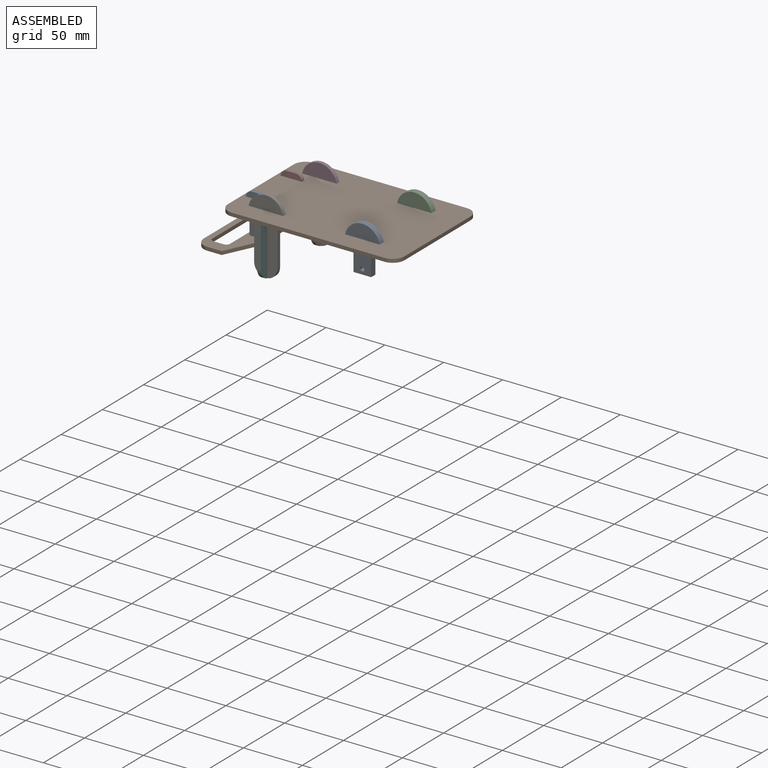
[diagram: assembled view]
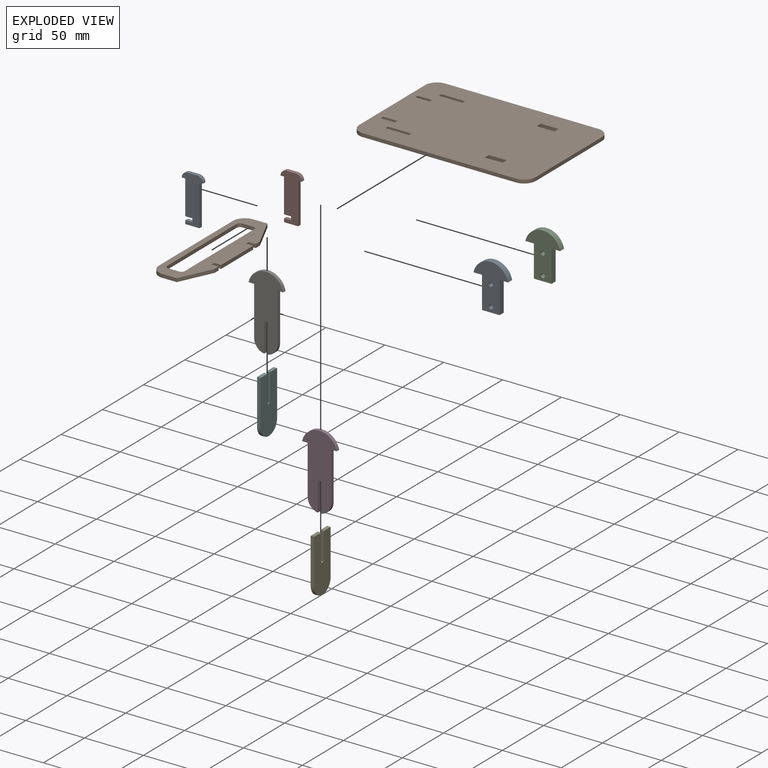
[diagram: exploded view]
GUIDED TOUR — MATED ASSEMBLY (Onshape document abbd8130f649f69f7b4c70c9, AutoMate assembly abbd8130f649f69f7b4c70c9_f316519da20f3b1aefb5f9d1_b10ad8e647afa2b3a58026e4_default)

This assembly has 10 components, labeled P0..P9 below (a component is one placed occurrence of a part; the same part can appear more than once), held together by 7 mates. A mate is a constraint between two components; its type names the relative motion it leaves free:
  FASTENED — locks the two components together rigidly (no relative motion).
Axis/direction vectors are unit vectors and 'through' points are millimeter coordinates, both in the assembly's world frame.

MATES
  1. FASTENED "고정 4": P5 <-> P6, direction (0.000, 0.000, 1.000) through (-47.23, -32.46, -24.69) mm
  2. FASTENED "고정 5": P4 <-> P3, direction (0.000, 0.000, 1.000) through (-47.23, 32.54, -24.69) mm
  3. FASTENED "고정 1": P9 <-> P8, direction (0.000, 0.000, 1.000) through (-69.23, -20.96, 1.76) mm
  4. FASTENED "고정 7": P0 <-> P9, direction (0.000, 0.000, -1.000) through (42.27, -31.46, 1.76) mm
  5. FASTENED "고정 2": P1 <-> P8, direction (1.000, 0.000, 0.000) through (-63.23, -20.96, -28.74) mm
  6. FASTENED "고정 3": P6 <-> P9, direction (0.000, 0.000, -1.000) through (-37.23, -32.46, 1.76) mm
  7. FASTENED "고정 6": P9 <-> P2, direction (0.000, 0.000, 1.000) through (42.27, 31.54, 1.76) mm

ASSEMBLY ORDER
  1. P7 — the base component [order verified]
  2. P1 [order verified]
  3. P8 [order verified]
  4. P9 [order verified]
  5. P0 [order verified]
  6. P6 [order verified]
  7. P5 [order verified]
  8. P3 [order verified]
  9. P4 [order verified]
  10. P2 [order verified]
Order-tag legend:
  [order verified] — this step's position reverses a verified removal order: the component was checked to insert without passing through the ones already placed.

Of the 10 components, 1 carries the full construction recipe — the FeatureScript program that regenerates the part's solid from scratch; the rest are supplied as boundary geometry only.
Each toured component is shown spotlighted twice — in the assembled view, then in the exploded view, where a leader line traces a displaced component back to its assembled socket (saturated green if recipe-attached, orange if geometry-only; every other component desaturated gray) — followed by its recipe or geometry summary and the mates that hold it.
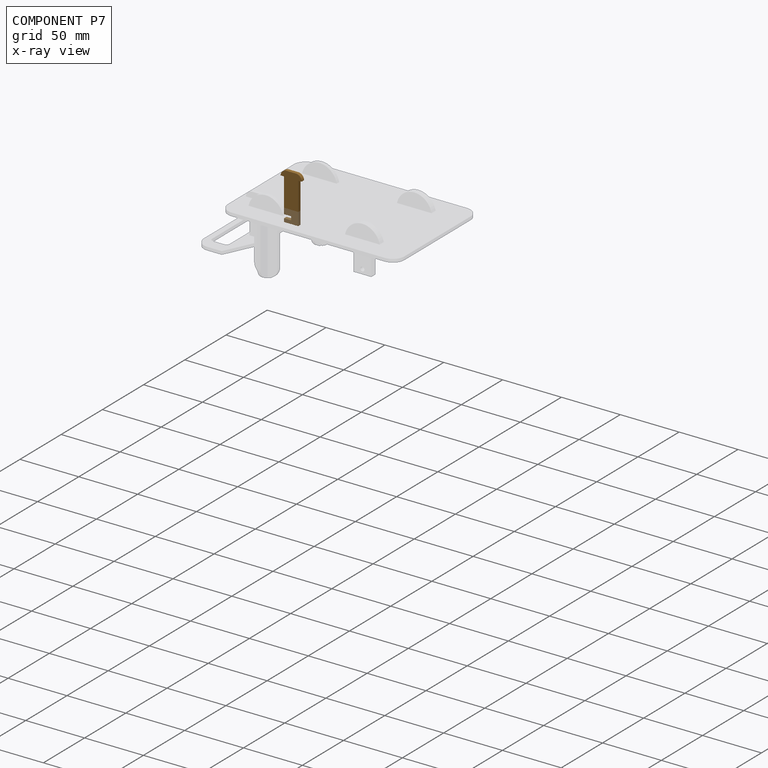
[diagram: component P7 — x-ray view]
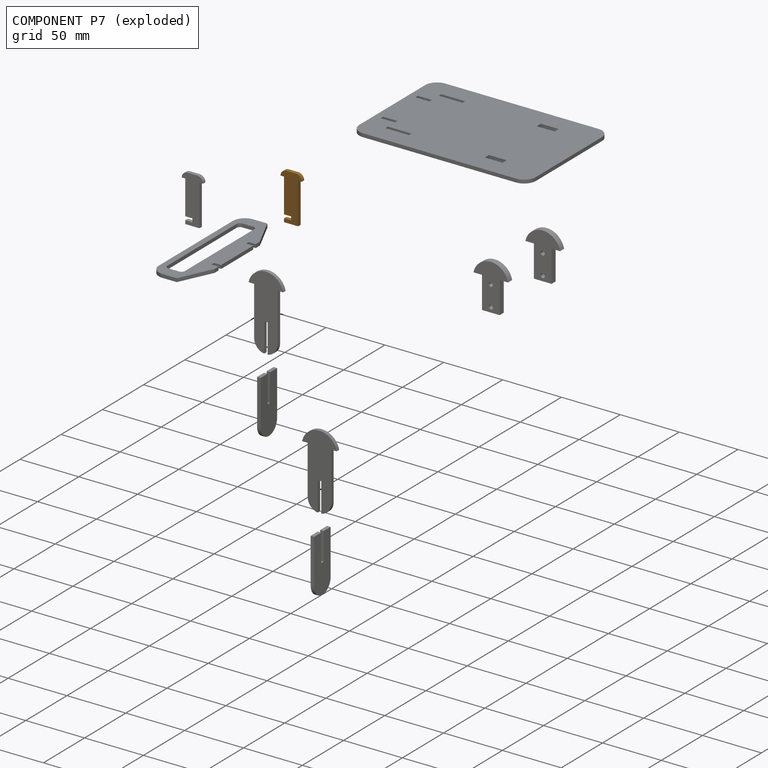
[diagram: component P7 — exploded]
COMPONENT P7 — geometry summary (no construction recipe available for this part):
  bounding box: 40.0 x 18.0 x 3.0 mm
  B-rep topology: 1 solid, 14 faces, 72 edges
  volume: 1444 mm^3 (67% of its bounding box)
  symmetry: mirror-symmetric across its z mid-plane
Held by: no mates (free).
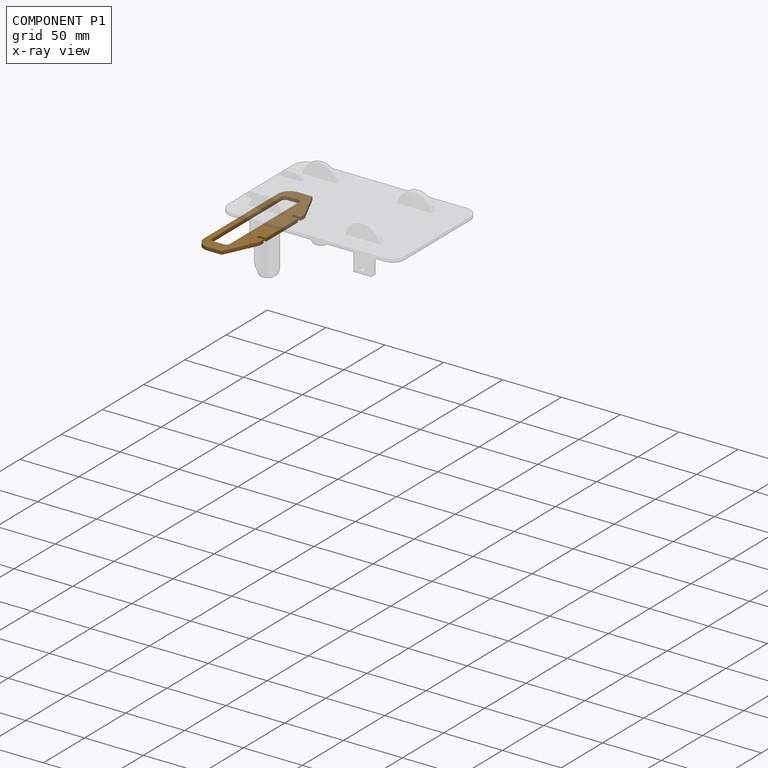
[diagram: component P1 — x-ray view]
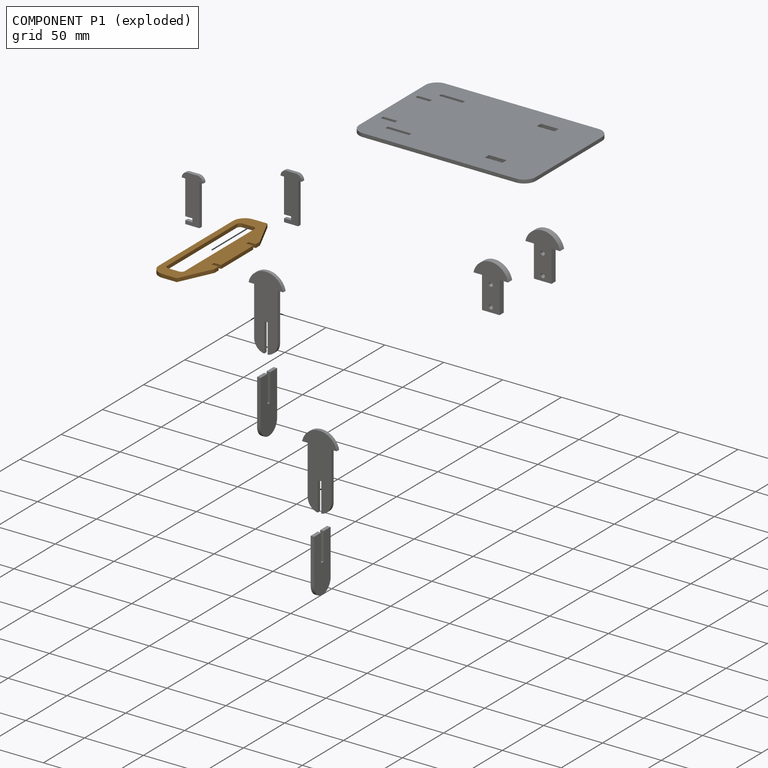
[diagram: component P1 — exploded]
COMPONENT P1 — geometry summary (no construction recipe available for this part):
  bounding box: 110.0 x 35.0 x 3.0 mm
  B-rep topology: 1 solid, 26 faces, 144 edges
  volume: 6228 mm^3 (54% of its bounding box)
  symmetry: 2-fold rotationally symmetric about the x axis; mirror-symmetric across its y mid-plane, z mid-plane
Held by: FASTENED mate "고정 2" to P8.
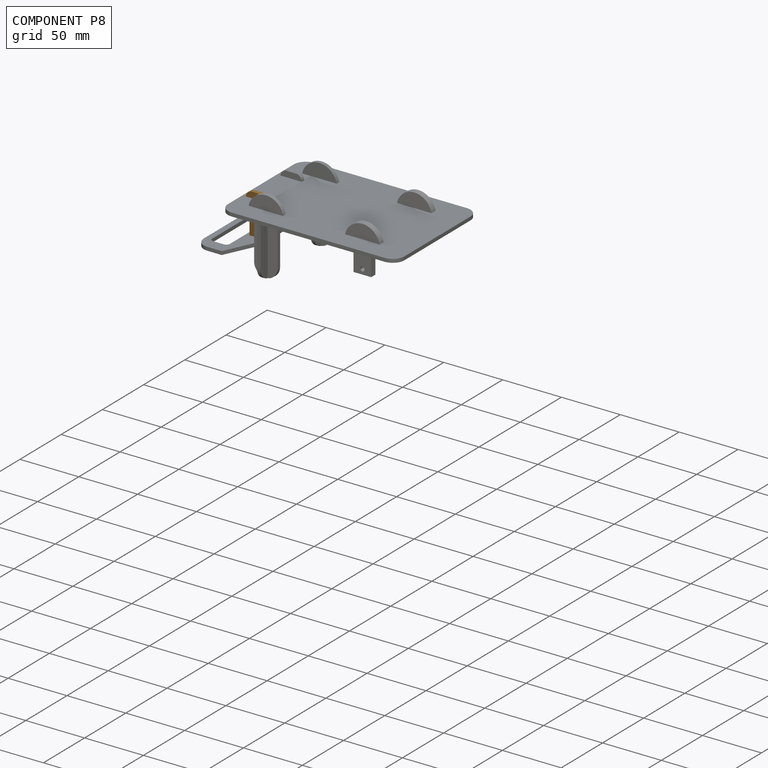
[diagram: component P8 — assembled]
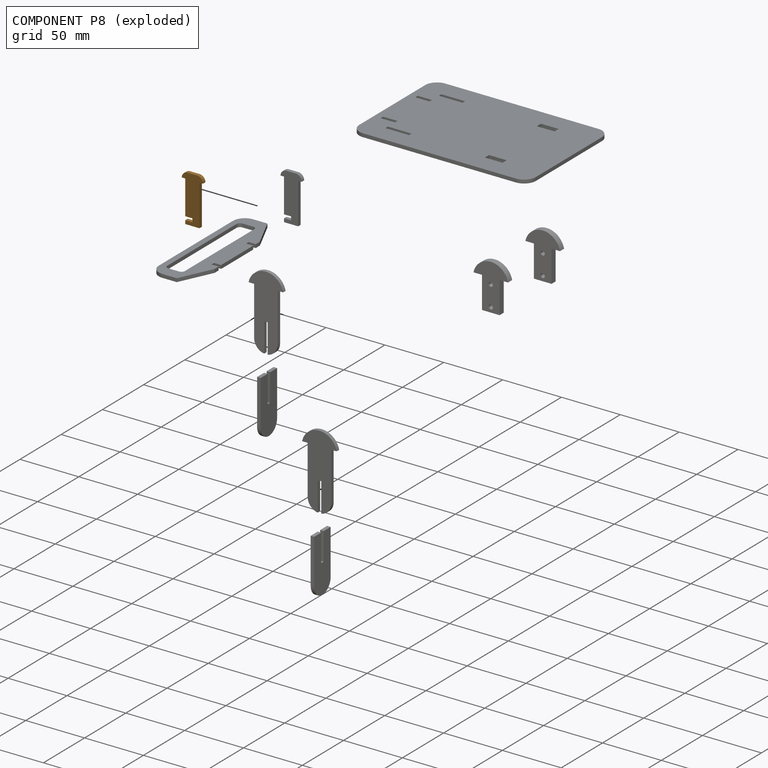
[diagram: component P8 — exploded]
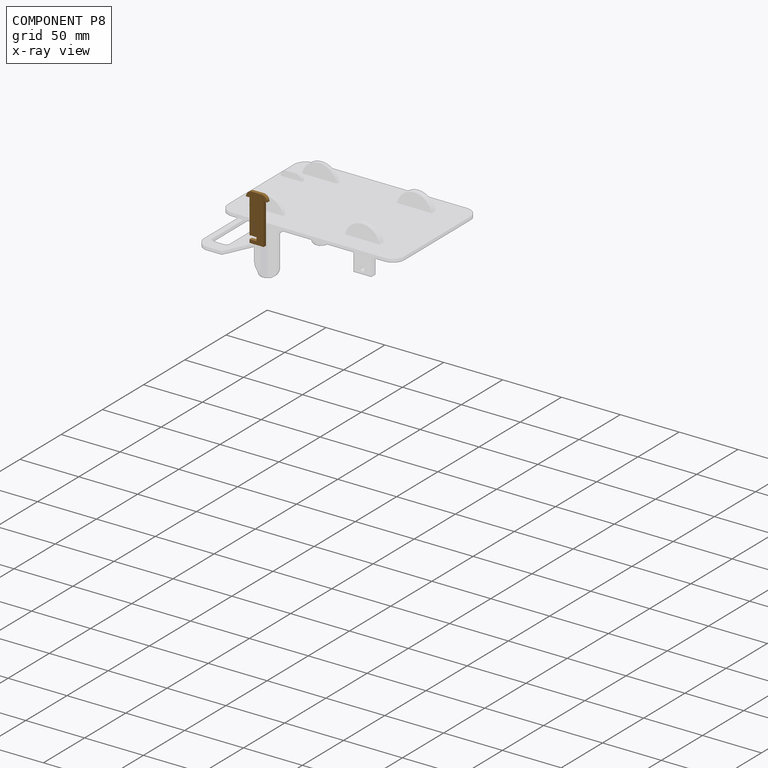
[diagram: component P8 — x-ray view]
COMPONENT P8 — geometry summary (no construction recipe available for this part):
  bounding box: 40.0 x 18.0 x 3.0 mm
  B-rep topology: 1 solid, 14 faces, 72 edges
  volume: 1444 mm^3 (67% of its bounding box)
  symmetry: mirror-symmetric across its z mid-plane
Held by: FASTENED mate "고정 1" to P9; FASTENED mate "고정 2" to P1.
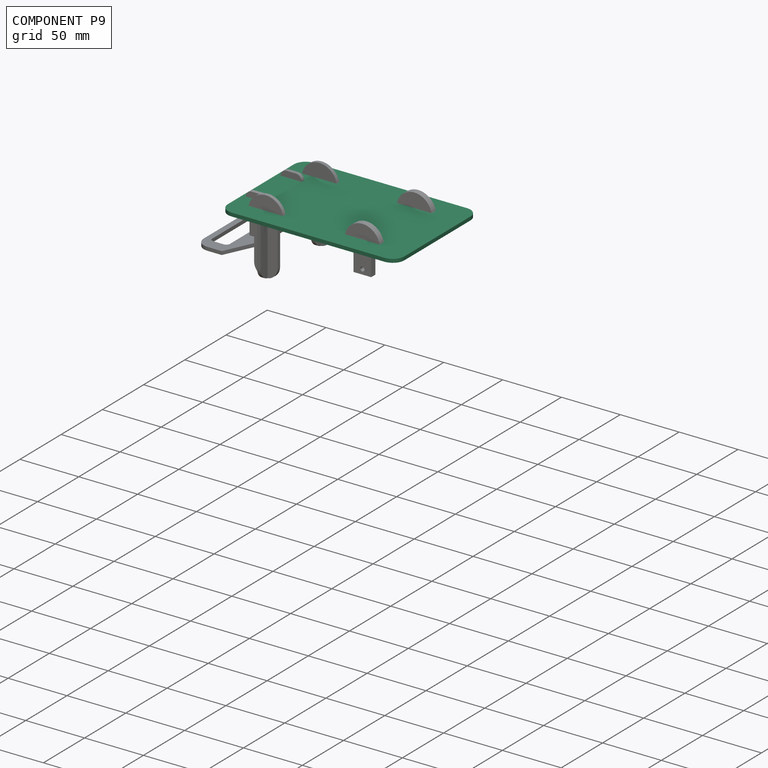
[diagram: component P9 — assembled]
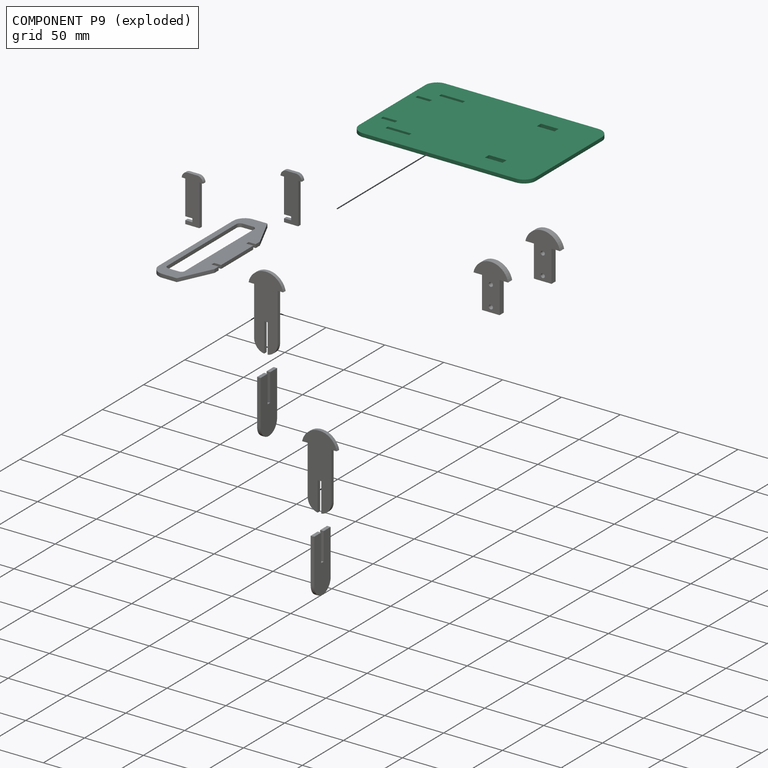
[diagram: component P9 — exploded]
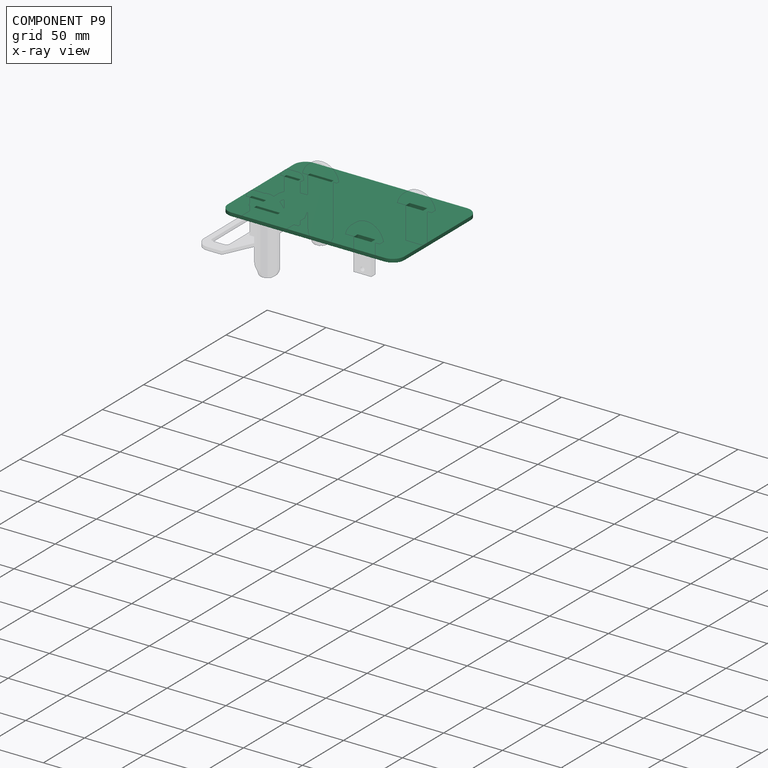
[diagram: component P9 — x-ray view]
COMPONENT P9 — recipe-attached (CADFS 00663200, mesh-verified: the recipe's output STEP matches this component's geometry to below the mesh-comparison resolution (tessellation chordal tolerance ~0.27 mm)).
Held by: FASTENED mate "고정 1" to P8; FASTENED mate "고정 7" to P0; FASTENED mate "고정 3" to P6; FASTENED mate "고정 6" to P2.
Construction recipe (FeatureScript — the CAD program that rebuilds this solid; sketch coordinates are in the units given by the * unit suffixes, e.g. mm):

FeatureScript 1511;
import(path : "onshape/std/geometry.fs", version : "1511.0");
import(path : "onshape/std/common.fs", version : "1511.0");
const mm = millimeter;
const VERTEX = EntityType.VERTEX;
const EDGE = EntityType.EDGE;
const FACE = EntityType.FACE;
const BODY = EntityType.BODY;
function v(x, y){return vector(x, y);}
function OD(order){return orderDisambiguation(order);}
function OSD(set){return originalSetDisambiguation(set);}
function TD(topology){return topologyDisambiguation(topology);}
function TDD(query){return trueDependencyDisambiguation(query);}
function sQuery(a, b, c) {return sketchEntityQuery(a, b, c);}

annotation { "Feature Type Name" : "Feature", "Feature Type Description" : "" }
export const myFeature = defineFeature(function(context is Context, id is Id, definition is map)
    precondition{}
    {
        {
            var Q0;
            Q0=qCreatedBy(makeId("Top.planeOp"),FACE);
            var sketch = newSketch(context, id + "F0", { "sketchPlane" : qUnion([Q0])});
            skLineSegment(sketch, "E0.bottom", {"start": v(-65, 50) * mm, "end": v(65, 50) * mm});
            skLineSegment(sketch, "E0.top", {"start": v(-65, -50) * mm, "end": v(65, -50) * mm});
            skLineSegment(sketch, "E0.left", {"start": v(-75, 40) * mm, "end": v(-75, -40) * mm});
            skLineSegment(sketch, "E0.right", {"start": v(75, 40) * mm, "end": v(75, -40) * mm});
            skPoint(sketch, "E0.middle", {"position": v(0, 0) * mm});
            skLineSegment(sketch, "E1.bottom", {"start": v(-69, -19.5) * mm, "end": v(-57, -19.5) * mm});
            skLineSegment(sketch, "E1.top", {"start": v(-69, -22.5) * mm, "end": v(-57, -22.5) * mm});
            skLineSegment(sketch, "E1.left", {"start": v(-69, -19.5) * mm, "end": v(-69, -22.5) * mm});
            skLineSegment(sketch, "E1.right", {"start": v(-57, -19.5) * mm, "end": v(-57, -22.5) * mm});
            skLineSegment(sketch, "E2.bottom", {"start": v(-57, -31) * mm, "end": v(-37, -31) * mm});
            skLineSegment(sketch, "E2.top", {"start": v(-57, -34) * mm, "end": v(-37, -34) * mm});
            skLineSegment(sketch, "E2.left", {"start": v(-57, -31) * mm, "end": v(-57, -34) * mm});
            skLineSegment(sketch, "E2.right", {"start": v(-37, -31) * mm, "end": v(-37, -34) * mm});
            skLineSegment(sketch, "E3.bottom", {"start": v(27.5, -29) * mm, "end": v(42.5, -29) * mm});
            skLineSegment(sketch, "E3.top", {"start": v(27.5, -34) * mm, "end": v(42.5, -34) * mm});
            skLineSegment(sketch, "E3.left", {"start": v(27.5, -29) * mm, "end": v(27.5, -34) * mm});
            skLineSegment(sketch, "E3.right", {"start": v(42.5, -29) * mm, "end": v(42.5, -34) * mm});
            skLineSegment(sketch, "E4.MirrorCS", {"start": v(-37, 31) * mm, "end": v(-37, 34) * mm});
            skLineSegment(sketch, "E5.MirrorCS", {"start": v(-57, 31) * mm, "end": v(-57, 34) * mm});
            skLineSegment(sketch, "E6.MirrorCS", {"start": v(-69, 19.5) * mm, "end": v(-69, 22.5) * mm});
            skLineSegment(sketch, "E7.MirrorCS", {"start": v(-57, 19.5) * mm, "end": v(-57, 22.5) * mm});
            skLineSegment(sketch, "E8.MirrorCS", {"start": v(42.5, 29) * mm, "end": v(42.5, 34) * mm});
            skLineSegment(sketch, "E9.MirrorCS", {"start": v(27.5, 29) * mm, "end": v(27.5, 34) * mm});
            skLineSegment(sketch, "E10.MirrorCS", {"start": v(27.5, 29) * mm, "end": v(42.5, 29) * mm});
            skLineSegment(sketch, "E11.MirrorCS", {"start": v(-57, 34) * mm, "end": v(-37, 34) * mm});
            skLineSegment(sketch, "E12.MirrorCS", {"start": v(-69, 22.5) * mm, "end": v(-57, 22.5) * mm});
            skLineSegment(sketch, "E13.MirrorCS", {"start": v(-57, 31) * mm, "end": v(-37, 31) * mm});
            skLineSegment(sketch, "E14.MirrorCS", {"start": v(-69, 19.5) * mm, "end": v(-57, 19.5) * mm});
            skLineSegment(sketch, "E15.MirrorCS", {"start": v(27.5, 34) * mm, "end": v(42.5, 34) * mm});
            skPoint(sketch, "E16.visualSharp", {"position": v(-75, 50) * mm});
            skArc(sketch, "E16.filletArc", {"start": v(-65, 50) * mm, "mid": v(-72.07, 47.07) * mm, "end": v(-75, 40) * mm});
            skPoint(sketch, "E17.visualSharp", {"position": v(75, 50) * mm});
            skArc(sketch, "E17.filletArc", {"start": v(75, 40) * mm, "mid": v(72.07, 47.07) * mm, "end": v(65, 50) * mm});
            skPoint(sketch, "E18.visualSharp", {"position": v(75, -50) * mm});
            skArc(sketch, "E18.filletArc", {"start": v(65, -50) * mm, "mid": v(72.07, -47.07) * mm, "end": v(75, -40) * mm});
            skPoint(sketch, "E19.visualSharp", {"position": v(-75, -50) * mm});
            skArc(sketch, "E19.filletArc", {"start": v(-75, -40) * mm, "mid": v(-72.07, -47.07) * mm, "end": v(-65, -50) * mm});
            skSolve(sketch);
        }
        {
            var Q0;
            Q0 = qSketchRegion(id + "F0", true);
            extrude(context, id + "F1", {"entities" : qUnion([Q0]), "depth" : 3 * mm, "offsetDistance" : 25 * mm});
        }
    });
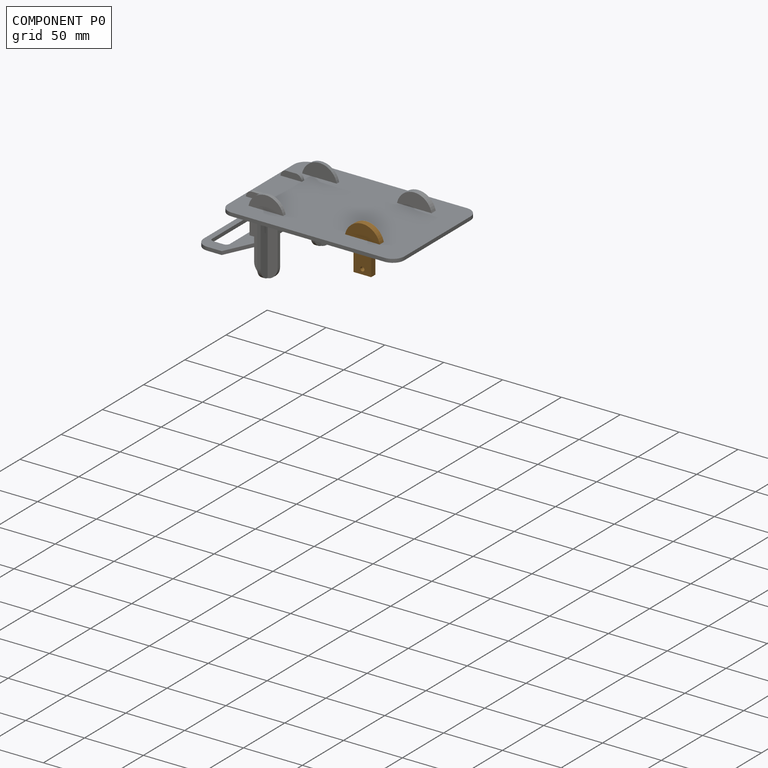
[diagram: component P0 — assembled]
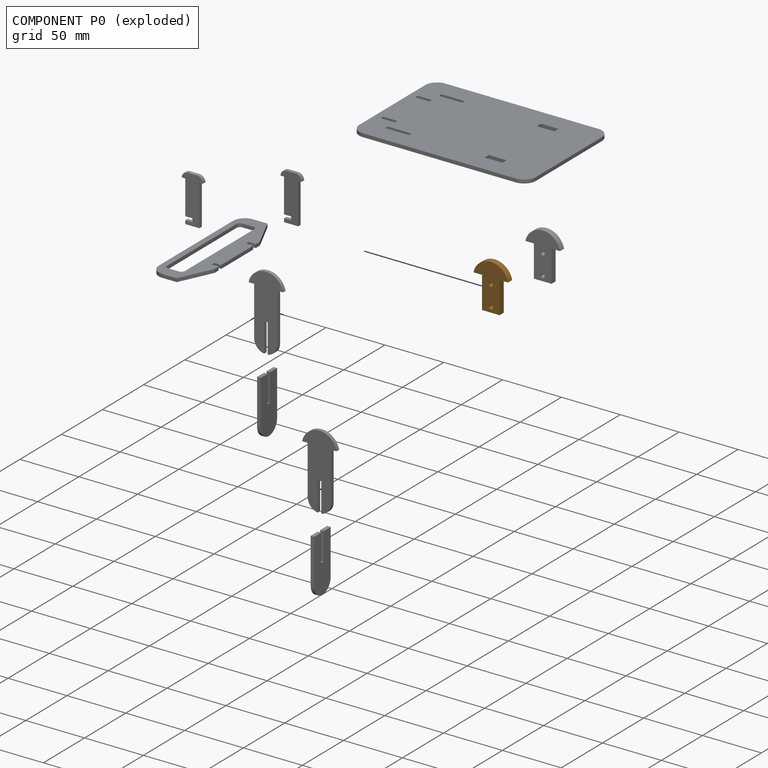
[diagram: component P0 — exploded]
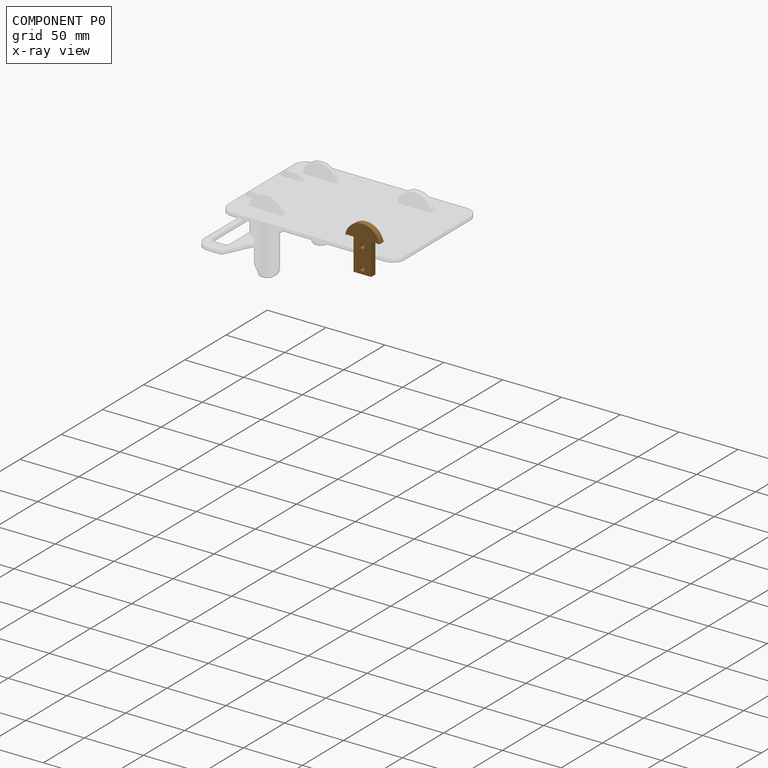
[diagram: component P0 — x-ray view]
COMPONENT P0 — geometry summary (no construction recipe available for this part):
  bounding box: 39.0 x 29.4 x 5.0 mm
  B-rep topology: 1 solid, 10 faces, 48 edges
  volume: 3249 mm^3 (57% of its bounding box)
  symmetry: 2-fold rotationally symmetric about the y axis; mirror-symmetric across its x mid-plane, z mid-plane
Held by: FASTENED mate "고정 7" to P9.
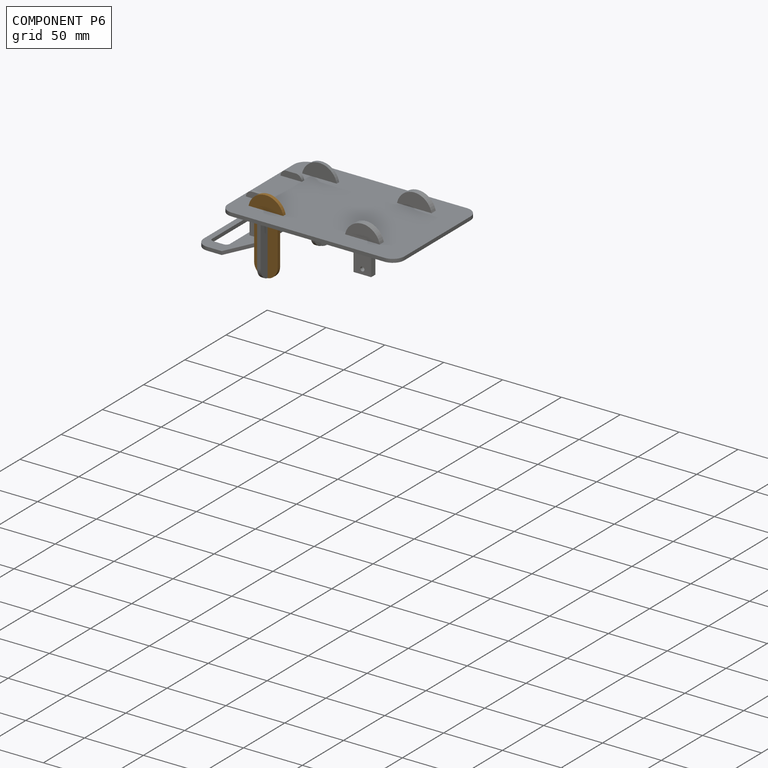
[diagram: component P6 — assembled]
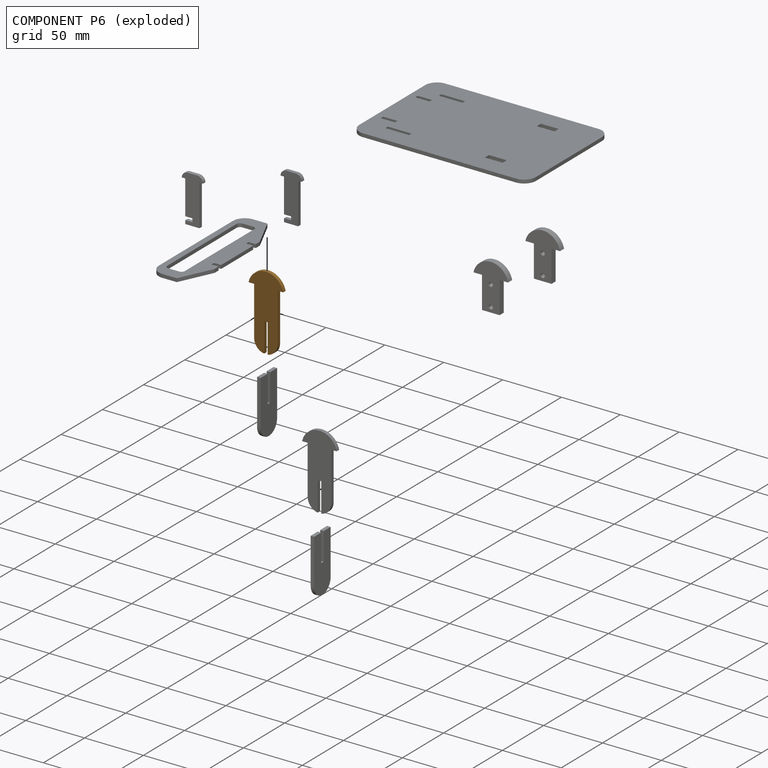
[diagram: component P6 — exploded]
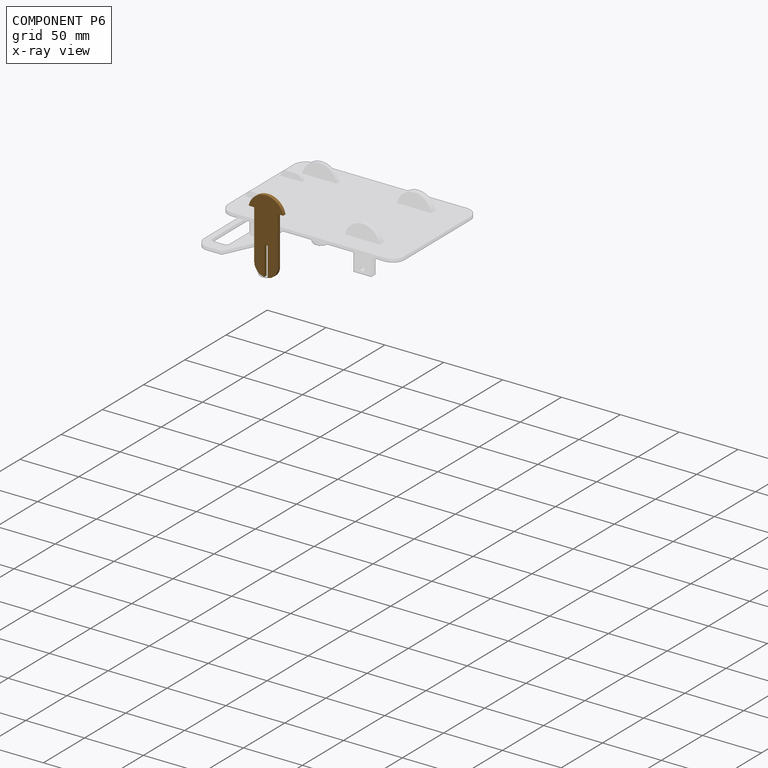
[diagram: component P6 — x-ray view]
COMPONENT P6 — geometry summary (no construction recipe available for this part):
  bounding box: 63.3 x 29.4 x 3.0 mm
  B-rep topology: 1 solid, 12 faces, 60 edges
  volume: 3526 mm^3 (63% of its bounding box)
  symmetry: 2-fold rotationally symmetric about the y axis; mirror-symmetric across its x mid-plane, z mid-plane
Held by: FASTENED mate "고정 4" to P5; FASTENED mate "고정 3" to P9.
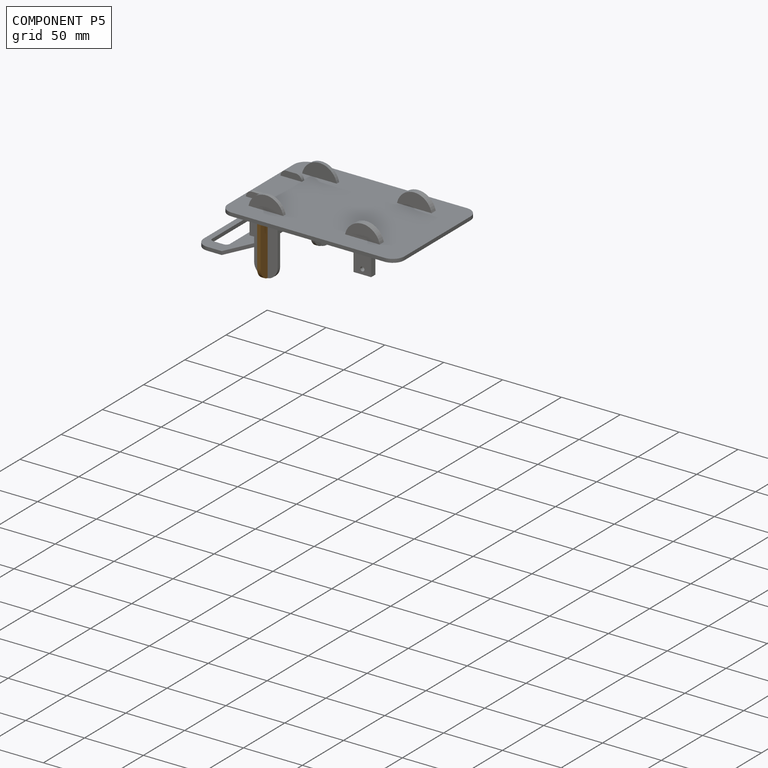
[diagram: component P5 — assembled]
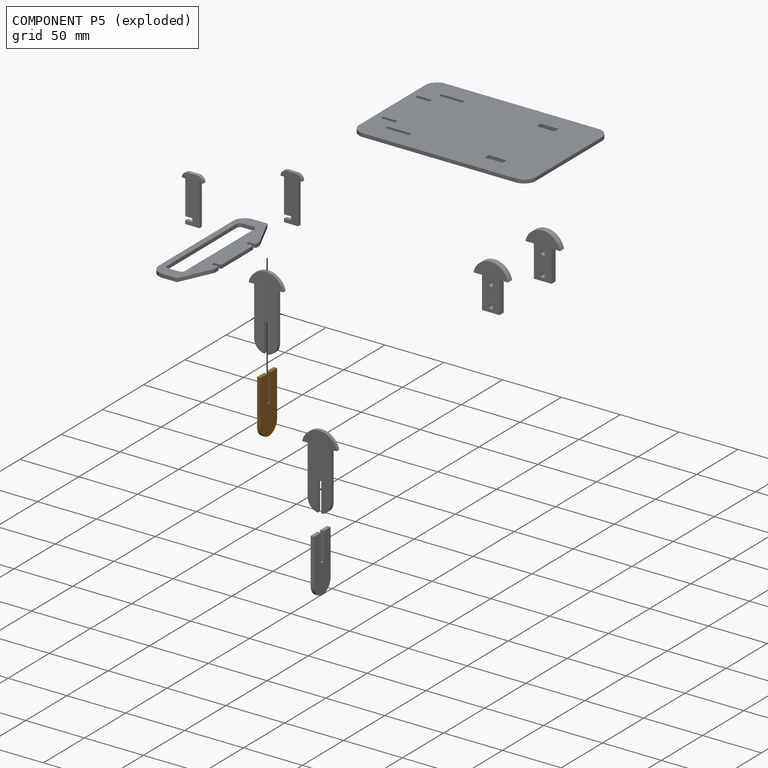
[diagram: component P5 — exploded]
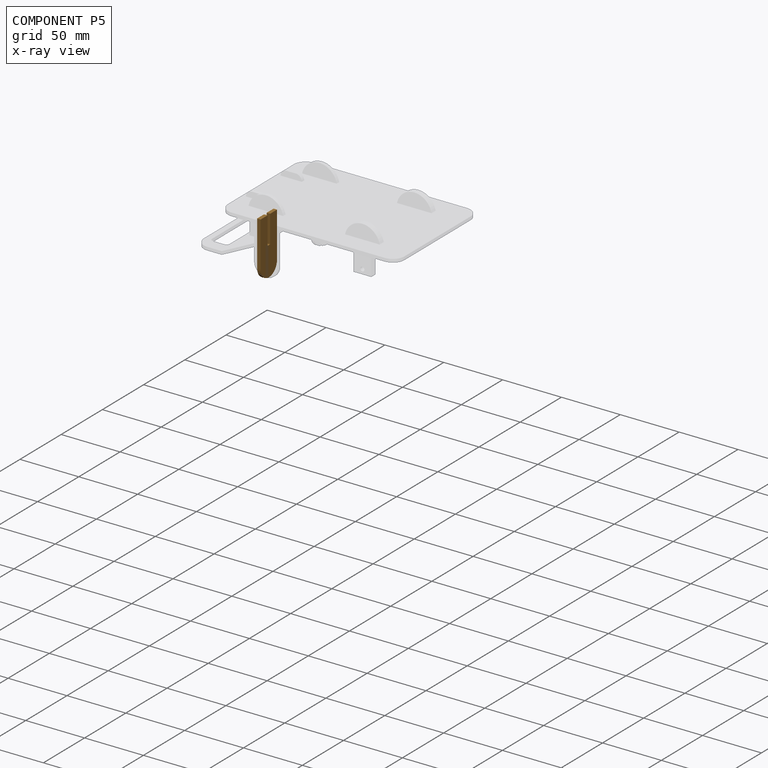
[diagram: component P5 — x-ray view]
COMPONENT P5 — geometry summary (no construction recipe available for this part):
  bounding box: 48.3 x 20.0 x 3.0 mm
  B-rep topology: 1 solid, 10 faces, 48 edges
  volume: 2561 mm^3 (88% of its bounding box)
  symmetry: 2-fold rotationally symmetric about the y axis; mirror-symmetric across its x mid-plane, z mid-plane
Held by: FASTENED mate "고정 4" to P6.
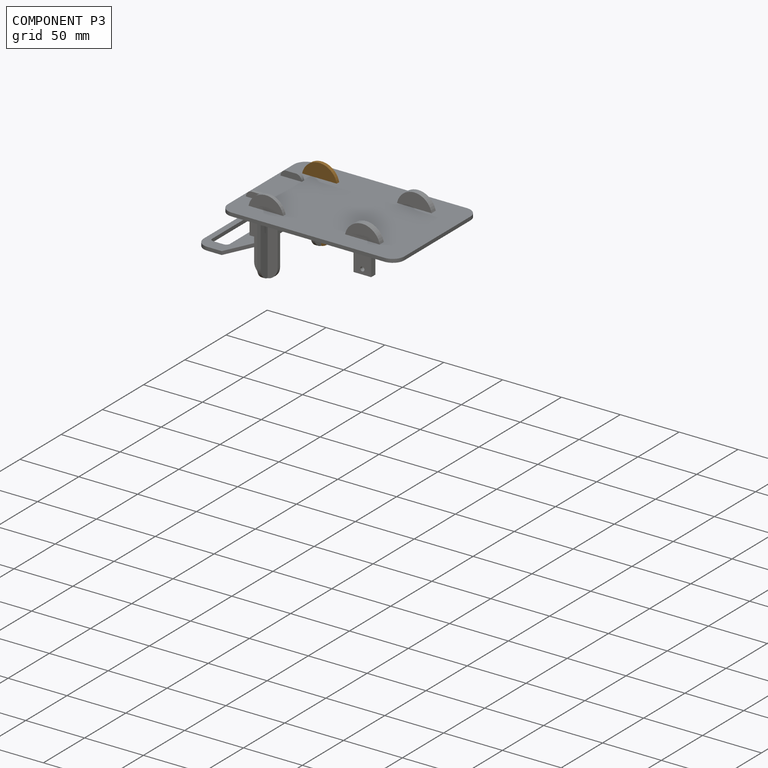
[diagram: component P3 — assembled]
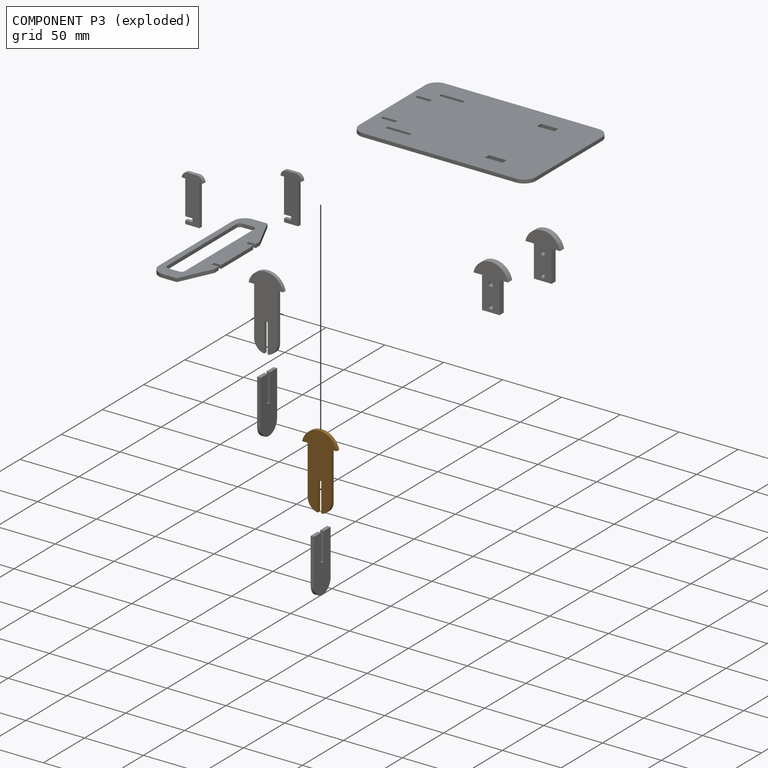
[diagram: component P3 — exploded]
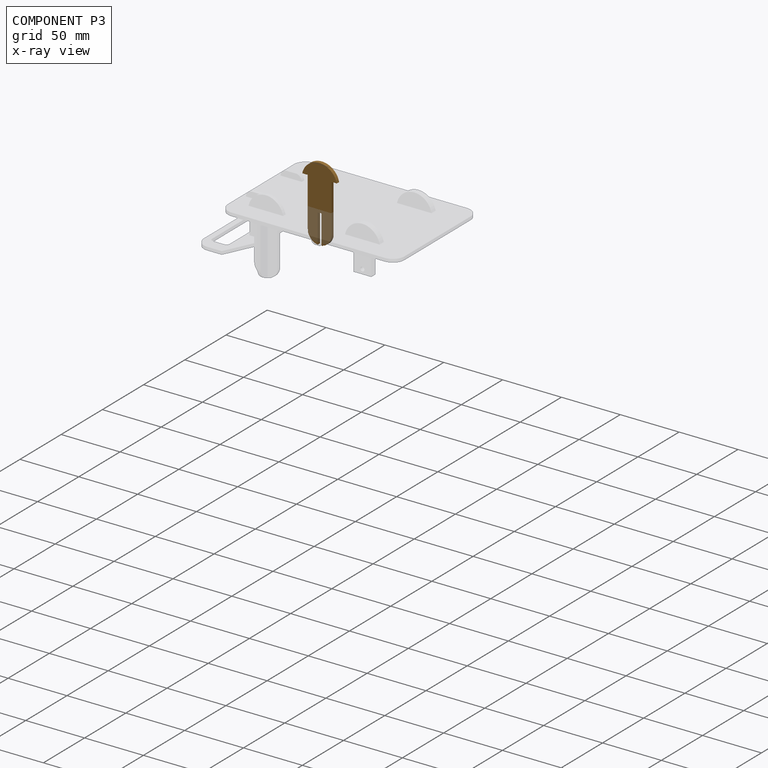
[diagram: component P3 — x-ray view]
COMPONENT P3 — geometry summary (no construction recipe available for this part):
  bounding box: 63.3 x 29.4 x 3.0 mm
  B-rep topology: 1 solid, 12 faces, 60 edges
  volume: 3526 mm^3 (63% of its bounding box)
  symmetry: 2-fold rotationally symmetric about the y axis; mirror-symmetric across its x mid-plane, z mid-plane
Held by: FASTENED mate "고정 5" to P4.
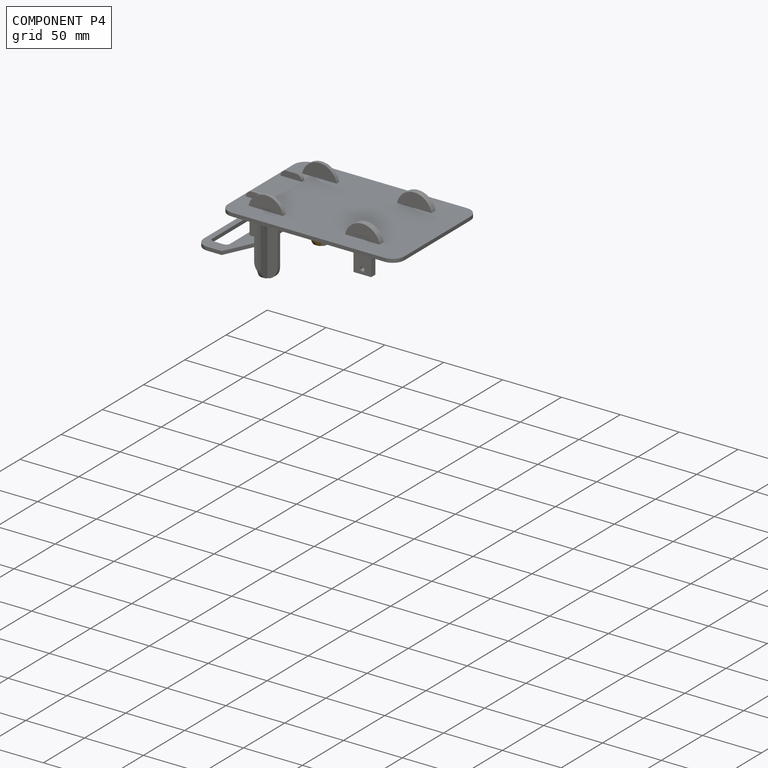
[diagram: component P4 — assembled]
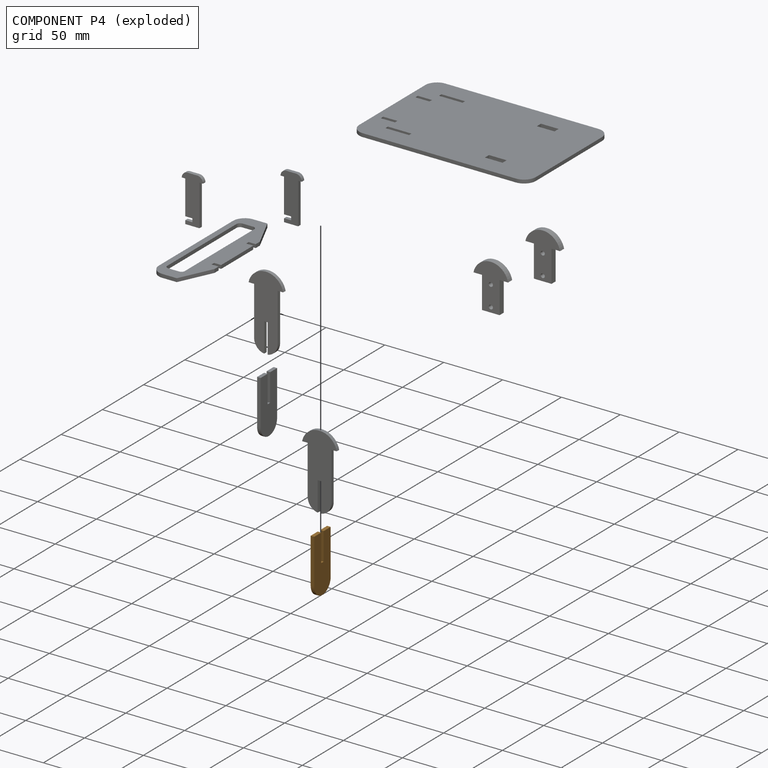
[diagram: component P4 — exploded]
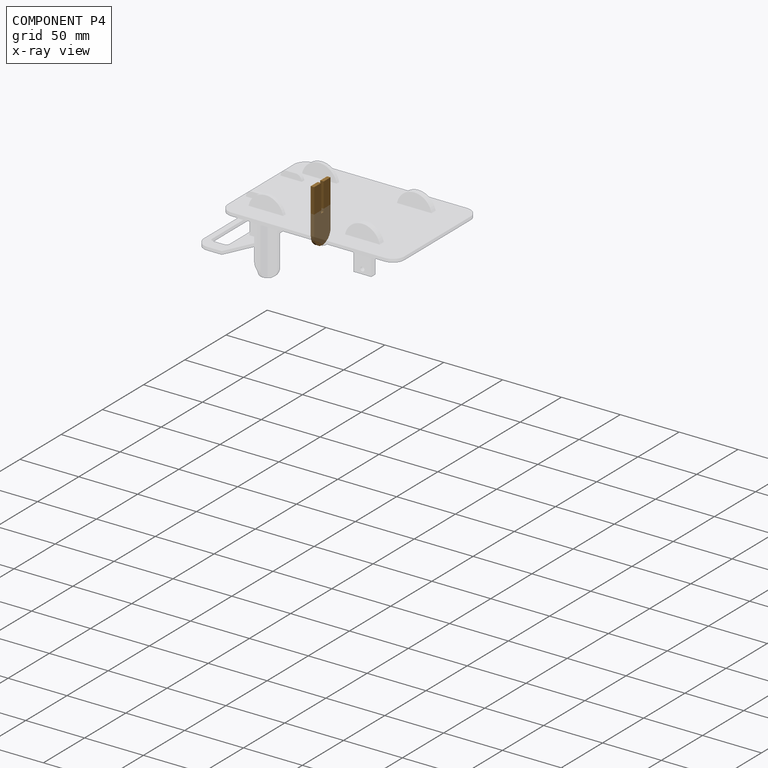
[diagram: component P4 — x-ray view]
COMPONENT P4 — geometry summary (no construction recipe available for this part):
  bounding box: 48.3 x 20.0 x 3.0 mm
  B-rep topology: 1 solid, 10 faces, 48 edges
  volume: 2561 mm^3 (88% of its bounding box)
  symmetry: 2-fold rotationally symmetric about the y axis; mirror-symmetric across its x mid-plane, z mid-plane
Held by: FASTENED mate "고정 5" to P3.
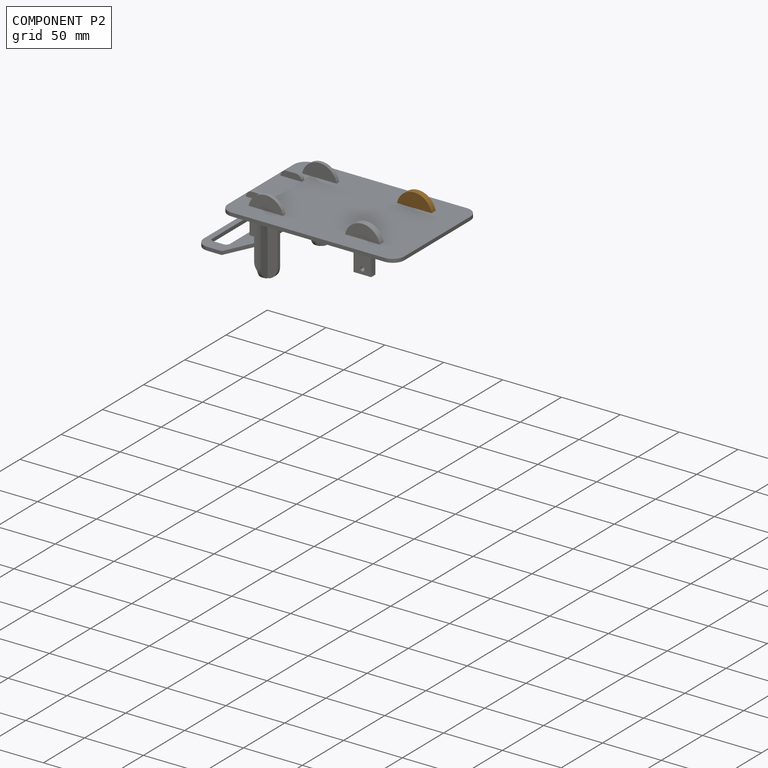
[diagram: component P2 — assembled]
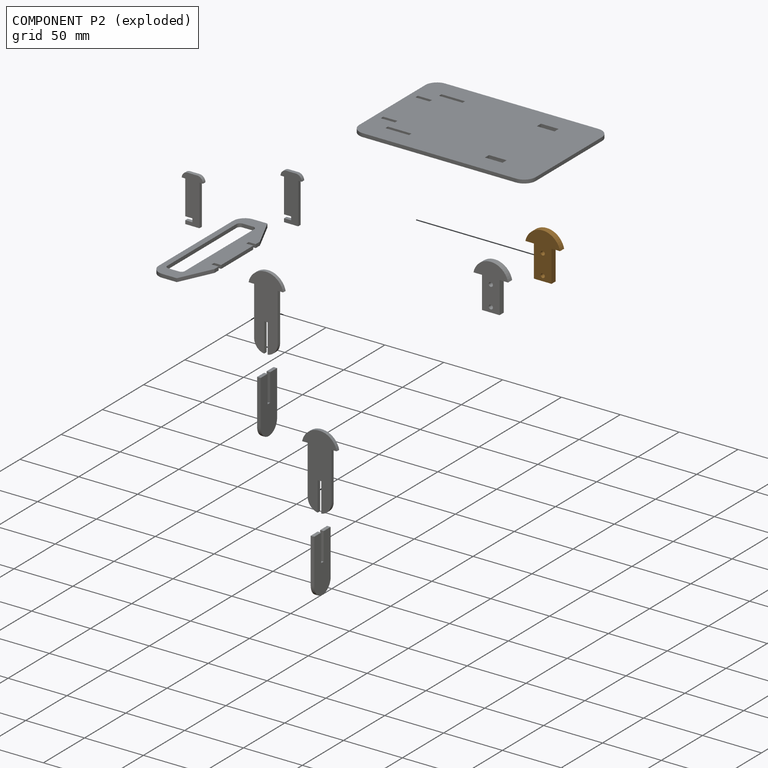
[diagram: component P2 — exploded]
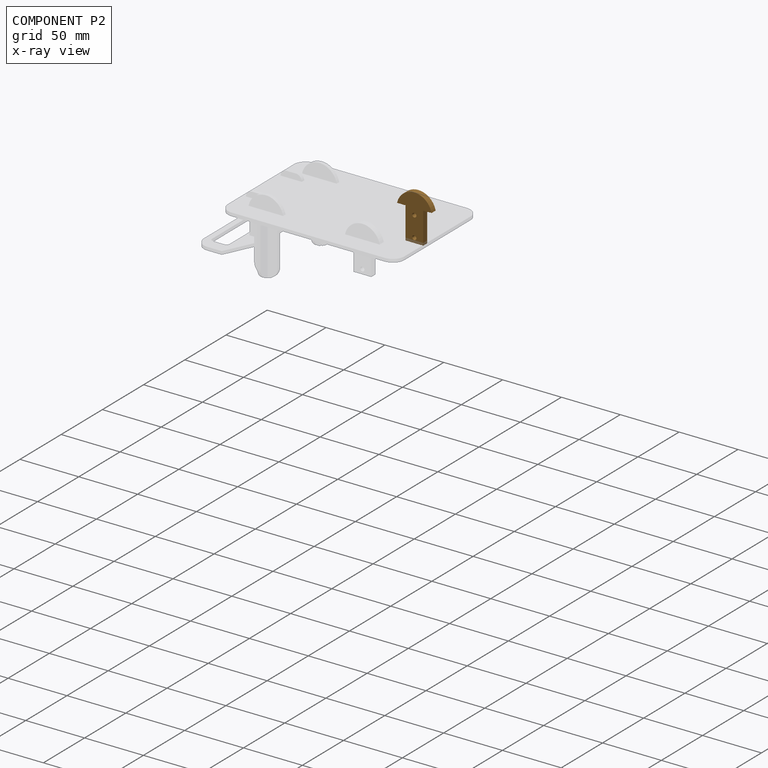
[diagram: component P2 — x-ray view]
COMPONENT P2 — geometry summary (no construction recipe available for this part):
  bounding box: 39.0 x 29.4 x 5.0 mm
  B-rep topology: 1 solid, 10 faces, 48 edges
  volume: 3249 mm^3 (57% of its bounding box)
  symmetry: 2-fold rotationally symmetric about the y axis; mirror-symmetric across its x mid-plane, z mid-plane
Held by: FASTENED mate "고정 6" to P9.
PROVENANCE & LICENSES
Assembly (occurrences, transforms, mates, per-part STEP geometry): AutoMate dataset, Zenodo record 7776208, CC0.
Construction recipes: CADFS (HuggingFace VladPyatov/CADFS, CC-BY-4.0, layered over the ABC dataset), FeatureScript reconstruction programs keyed by ABC model id.
Join: ABC meta listings map ABC model id -> Onshape documentId; within a shared document, parts are matched by geometric signature (bounding-box dims + volume at 0.1% relative tolerance, exact B-rep face/solid counts).
Verification: 1 of this assembly's 10 components carries a recipe attachment, and every attachment is mesh-verified: the CADFS STEP and the AutoMate member STEP were compared as meshes in their shared local frame (symmetric sampled-point-to-mesh distance); worst across the 1 attachment: below the mesh-comparison resolution (tessellation chordal tolerance ~0.27 mm) on a 180 mm part.
Renders: orthographic iso camera (az 35 / el 25); the floor grid conveys scale (grid pitch printed in each image; no ruler). In the exploded view each component is displaced by its stored offset vector: the offsets alone carry the explosion direction (mate normal/axis signs are not orientation cues and do not encode it), and separation distances are assigned per mate-chain, not proportionally to assembly-order depth.
